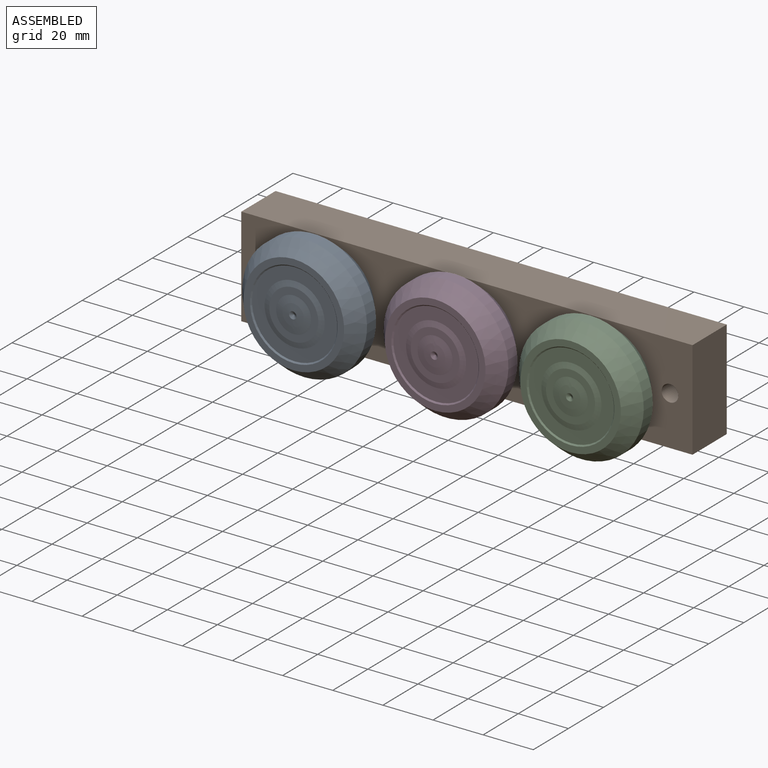
[diagram: assembled view]
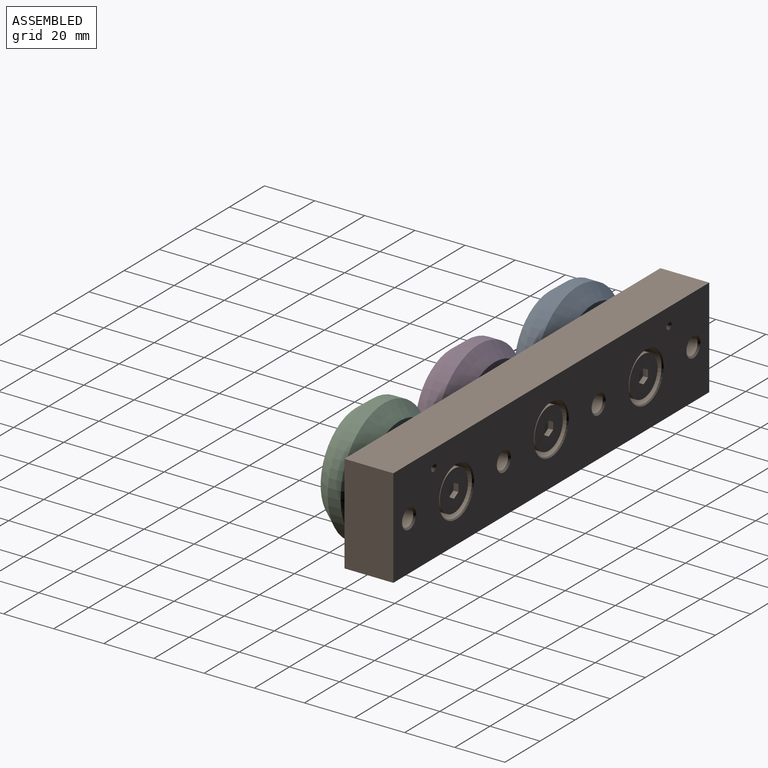
[diagram: assembled view, second angle]
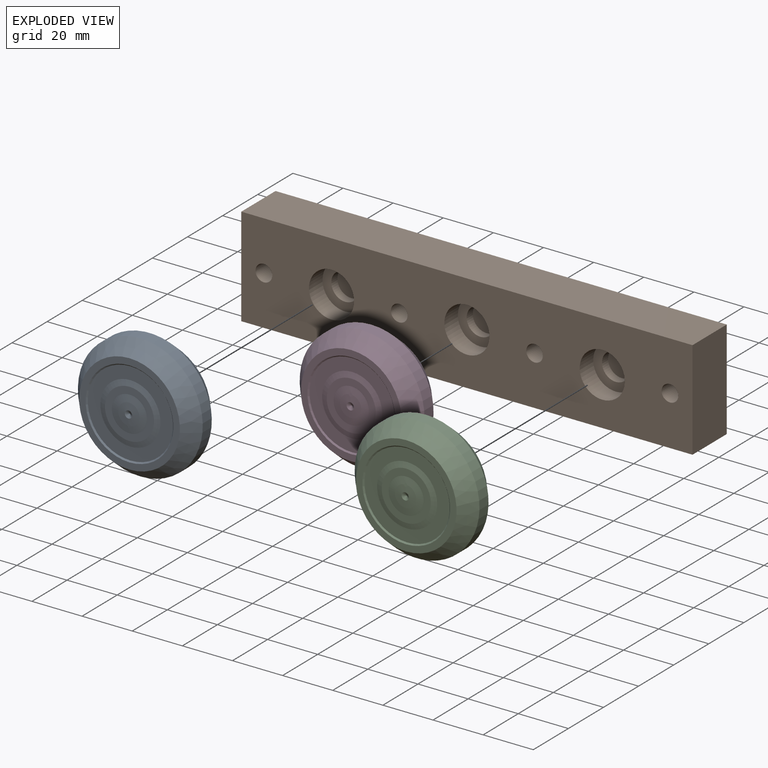
[diagram: exploded view]
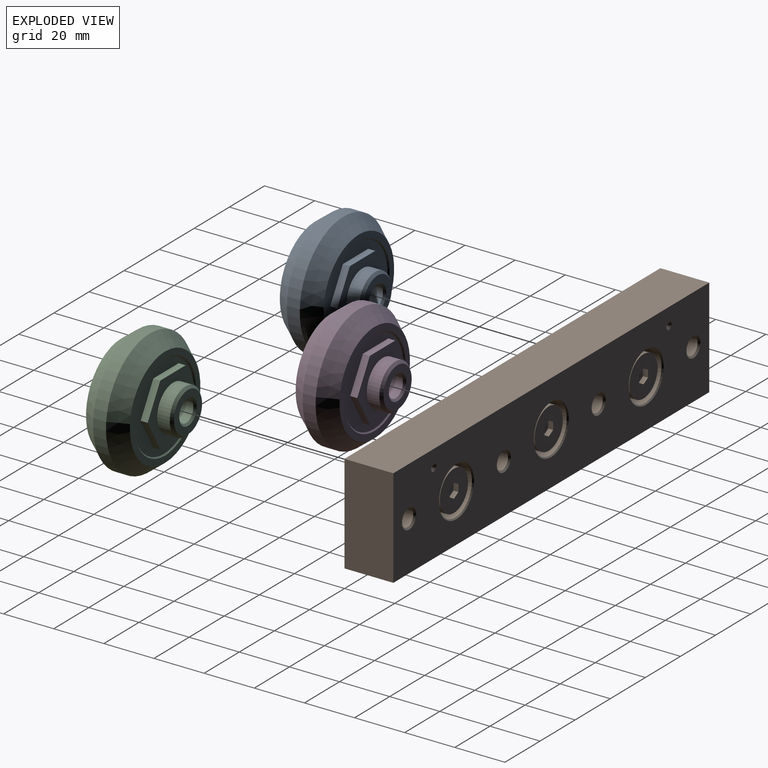
[diagram: exploded view, second angle]
ASSEMBLY  parts=4 mates=3
PART A: 26 faces, bbox 26.4x49.8x49.8 mm
  f0: plane 16x16mm, normal (-1,0,0), area 122.5mm2, adj f21,f23
  f1: plane 34x34mm, normal (-1,0,0), area 366.7mm2, adj f2,f15,f16,f17,f18,f19,f20
  f2: cone r=17.5mm half-angle=45deg, axis (-1,0,0), area 76.6mm2, adj f1,f3
  f3: plane 40.16x40.16mm, normal (-1,0,0), area 304.6mm2, adj f2,f4
  f4: cone r=24.9mm half-angle=38deg, axis (1,0,0), area 1106.3mm2, adj f3,f5
  f5: cylinder r=24.9mm len=49.8mm, axis (-1,0,0), area 807.5mm2, adj f4,f6
  f6: cone r=20.08mm half-angle=38deg, axis (-1,0,0), area 1106.3mm2, adj f5,f7
  f7: plane 40.16x40.16mm, normal (1,0,0), area 304.6mm2, adj f6,f8
  f8: cone r=17mm half-angle=45deg, axis (1,0,0), area 76.6mm2, adj f7,f9
  f9: plane 34x34mm, normal (1,0,0), area 455.5mm2, adj f8,f10
  f10: cone r=9.79mm half-angle=77.3deg, axis (-1,0,0), area 155.2mm2, adj f9,f11
  f11: plane 19.58x19.58mm, normal (1,0,0), area 147.6mm2, adj f10,f12
  f12: sphere r=41mm, area 147.9mm2, adj f11,f13
  f13: cone r=0mm half-angle=60deg, axis (1,0,0), area 7.8mm2, adj f12
  f14: plane 28.87x25mm, normal (-1,0,0), area 286.8mm2, adj f15,f16,f17,f18,f19,f20,f22
  f15: plane 12.5x7.22mm, normal (0,0.5,0.87), area 40.4mm2, adj f1,f14,f16,f20
  f16: plane 14.43x2.8mm, normal (0,1,0), area 40.4mm2, adj f1,f14,f15,f17
  f17: plane 12.5x7.22mm, normal (0,0.5,-0.87), area 40.4mm2, adj f1,f14,f16,f18
  f18: plane 12.5x7.22mm, normal (0,-0.5,-0.87), area 40.4mm2, adj f1,f14,f17,f19
  f19: plane 14.43x2.8mm, normal (0,-1,0), area 40.4mm2, adj f1,f14,f18,f20
  f20: plane 12.5x7.22mm, normal (0,-0.5,0.87), area 40.4mm2, adj f1,f14,f15,f19
  f21: cone r=9mm half-angle=45deg, axis (1,0,0), area 75.5mm2, adj f0,f22
  f22: cylinder r=9mm len=18mm, axis (-1,0,0), area 282.7mm2, adj f14,f21
  f23: cone r=4.19mm half-angle=45deg, axis (-1,0,0), area 33.1mm2, adj f0,f24
  f24: cylinder r=4.19mm len=20.19mm, axis (-1,0,0), area 531.2mm2, adj f23,f25
  f25: cone r=0mm half-angle=59deg, axis (-1,0,0), area 64.3mm2, adj f24
PART B: 64 faces, bbox 180x19.5x39.5 mm
  f0: plane 180x39.5mm, normal (0,1,0), area 5952.3mm2, adj f2,f3,f4,f5,f6,f12,f18,f24
  f1: plane 180x39.5mm, normal (0,-1,0), area 6207.8mm2, adj f2,f3,f4,f5,f11,f17,f23,f25
  f2: plane 180x19.5mm, normal (0,0,-1), area 3510mm2, adj f0,f1,f3,f5
  f3: plane 39.5x19.5mm, normal (-1,0,0), area 770.2mm2, adj f0,f1,f2,f4
  f4: plane 180x19.5mm, normal (0,0,1), area 3510mm2, adj f0,f1,f3,f5
  f5: plane 39.5x19.5mm, normal (1,0,0), area 770.2mm2, adj f0,f1,f2,f4
  f6: cone r=9.5mm half-angle=45deg, axis (0,1,0), area 43.3mm2, adj f0,f7
  f7: cylinder r=9.5mm len=19mm, axis (0,1,0), area 465.6mm2, adj f6,f8
  f8: plane 19x19mm, normal (0,1,0), area 82.5mm2, adj f7,f33
  f9: cylinder r=5.5mm len=11mm, axis (0,1,0), area 121mm2, adj f10,f32
  f10: plane 18x18mm, normal (0,-1,0), area 159.4mm2, adj f9,f11
  f11: cylinder r=9mm len=18mm, axis (0,1,0), area 435.4mm2, adj f1,f10
  f12: cone r=9.5mm half-angle=45deg, axis (0,1,0), area 43.3mm2, adj f0,f13
  f13: cylinder r=9.5mm len=19mm, axis (0,1,0), area 465.6mm2, adj f12,f14
  f14: plane 19x19mm, normal (0,1,0), area 82.5mm2, adj f13,f36
  f15: cylinder r=5.5mm len=11mm, axis (0,1,0), area 121mm2, adj f16,f35
  f16: plane 18x18mm, normal (0,-1,0), area 159.4mm2, adj f15,f17
  f17: cylinder r=9mm len=18mm, axis (0,1,0), area 435.4mm2, adj f1,f16
  f18: cone r=9.5mm half-angle=45deg, axis (0,1,0), area 43.3mm2, adj f0,f19
  f19: cylinder r=9.5mm len=19mm, axis (0,1,0), area 465.6mm2, adj f18,f20
  f20: plane 19x19mm, normal (0,1,0), area 82.5mm2, adj f19,f39
  f21: cylinder r=5.5mm len=11mm, axis (0,1,0), area 121mm2, adj f22,f38
  f22: plane 18x18mm, normal (0,-1,0), area 159.4mm2, adj f21,f23
  f23: cylinder r=9mm len=18mm, axis (0,1,0), area 435.4mm2, adj f1,f22
  f24: cone r=3.32mm half-angle=45deg, axis (0,1,0), area 22mm2, adj f0,f25
  f25: cylinder r=3.32mm len=18.82mm, axis (0,1,0), area 393.1mm2, adj f1,f24
  f26: cone r=3.32mm half-angle=45deg, axis (0,1,0), area 22mm2, adj f0,f27
  f27: cylinder r=3.32mm len=18.82mm, axis (0,1,0), area 393.1mm2, adj f1,f26
  f28: cone r=3.32mm half-angle=45deg, axis (0,1,0), area 22mm2, adj f0,f29
  f29: cylinder r=3.32mm len=18.82mm, axis (0,1,0), area 393.1mm2, adj f1,f28
  f30: cone r=3.32mm half-angle=45deg, axis (0,1,0), area 22mm2, adj f0,f31
  f31: cylinder r=3.32mm len=18.82mm, axis (0,1,0), area 393.1mm2, adj f1,f30
  f32: plane 11x11mm, normal (0,-1,0), area 95mm2, adj f9
  f33: cylinder r=8mm len=16mm, axis (0,1,0), area 366.9mm2, adj f8,f34
  f34: plane 16x16mm, normal (0,1,0), area 179.4mm2, adj f33,f41,f42,f43,f44,f45,f46
  f35: plane 11x11mm, normal (0,-1,0), area 95mm2, adj f15
  f36: cylinder r=8mm len=16mm, axis (0,1,0), area 366.9mm2, adj f14,f37
  f37: plane 16x16mm, normal (0,1,0), area 179.4mm2, adj f36,f48,f49,f50,f51,f52,f53
  f38: plane 11x11mm, normal (0,-1,0), area 95mm2, adj f21
  f39: cylinder r=8mm len=16mm, axis (0,1,0), area 366.9mm2, adj f20,f40
  f40: plane 16x16mm, normal (0,1,0), area 179.4mm2, adj f39,f55,f56,f57,f58,f59,f60
  f41: plane 2.5x2mm, normal (0.5,0,0.87), area 5.8mm2, adj f34,f42,f46,f47
  f42: plane 2.5x2mm, normal (-0.5,0,0.87), area 5.8mm2, adj f34,f41,f43,f47
  f43: plane 2.89x2mm, normal (-1,0,0), area 5.8mm2, adj f34,f42,f44,f47
  f44: plane 2.5x2mm, normal (-0.5,0,-0.87), area 5.8mm2, adj f34,f43,f45,f47
  f45: plane 2.5x2mm, normal (0.5,0,-0.87), area 5.8mm2, adj f34,f44,f46,f47
  f46: plane 2.89x2mm, normal (1,0,0), area 5.8mm2, adj f34,f41,f45,f47
  f47: plane 5.77x5mm, normal (0,1,0), area 21.7mm2, adj f41,f42,f43,f44,f45,f46
  f48: plane 2.5x2mm, normal (0.5,0,0.87), area 5.8mm2, adj f37,f49,f53,f54
  f49: plane 2.5x2mm, normal (-0.5,0,0.87), area 5.8mm2, adj f37,f48,f50,f54
  f50: plane 2.89x2mm, normal (-1,0,0), area 5.8mm2, adj f37,f49,f51,f54
  f51: plane 2.5x2mm, normal (-0.5,0,-0.87), area 5.8mm2, adj f37,f50,f52,f54
  f52: plane 2.5x2mm, normal (0.5,0,-0.87), area 5.8mm2, adj f37,f51,f53,f54
  f53: plane 2.89x2mm, normal (1,0,0), area 5.8mm2, adj f37,f48,f52,f54
  f54: plane 5.77x5mm, normal (0,1,0), area 21.7mm2, adj f48,f49,f50,f51,f52,f53
  f55: plane 2.5x2mm, normal (0.5,0,0.87), area 5.8mm2, adj f40,f56,f60,f61
  f56: plane 2.5x2mm, normal (-0.5,0,0.87), area 5.8mm2, adj f40,f55,f57,f61
  f57: plane 2.89x2mm, normal (-1,0,0), area 5.8mm2, adj f40,f56,f58,f61
  f58: plane 2.5x2mm, normal (-0.5,0,-0.87), area 5.8mm2, adj f40,f57,f59,f61
  f59: plane 2.5x2mm, normal (0.5,0,-0.87), area 5.8mm2, adj f40,f58,f60,f61
  f60: plane 2.89x2mm, normal (1,0,0), area 5.8mm2, adj f40,f55,f59,f61
  f61: plane 5.77x5mm, normal (0,1,0), area 21.7mm2, adj f55,f56,f57,f58,f59,f60
  f62: cone r=0mm half-angle=59.9deg, axis (0,1,0), area 8.2mm2, adj f0
  f63: cone r=0mm half-angle=59.9deg, axis (0,1,0), area 8.2mm2, adj f0
PART C: same geometry as A
PART D: same geometry as A
PLACE A rot(axis=(0.58,-0.58,-0.58),120deg) t=(37.16,7.62,15.98)mm
PLACE B t=(2.36,1.62,-3.22)mm
PLACE C rot(axis=(-0.58,0.58,-0.58),120deg) t=(147.56,7.62,15.98)mm
PLACE D rot(axis=(-0.58,0.58,-0.58),120deg) t=(93.56,7.62,16.53)mm
MATE revolute C.f21 <-> B.f18  axis (0,1,0) through (146.36,1.62,15.98)mm
MATE revolute A.f21 <-> B.f6  axis (0,1,0) through (38.36,1.62,15.98)mm
MATE revolute D.f21 <-> B.f1  axis (0,1,0) through (92.36,1.62,16.53)mm
